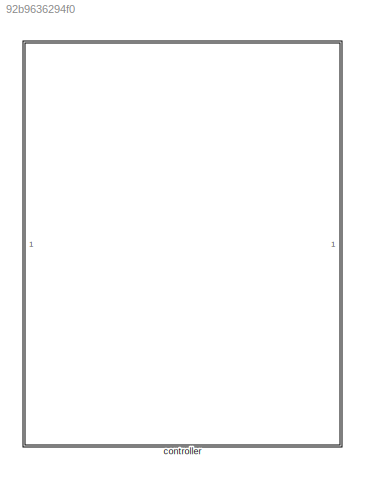
MODEL slx_92b9636294f0
KIND library
CONFIG AbsTol = auto
CONFIG EnableMultiTasking = off
CONFIG FixedStep = auto
CONFIG MaxStep = auto
CONFIG MinStep = auto
CONFIG RelTol = 1e-3
CONFIG SampleTimeConstraint = Unconstrained
CONFIG SolverName = VariableStepAuto
CONFIG StartTime = 0.0
CONFIG StopTime = 10.0
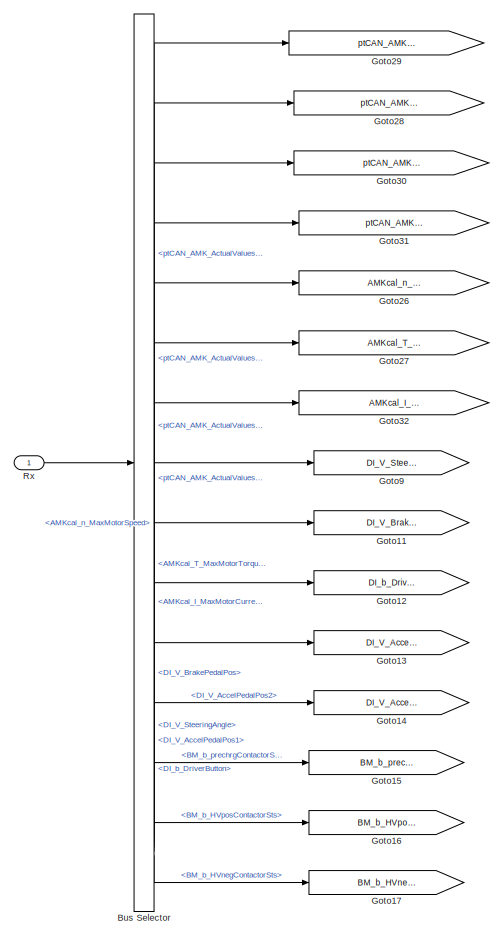
[diagram: controller - part 1/4, left side, full height]
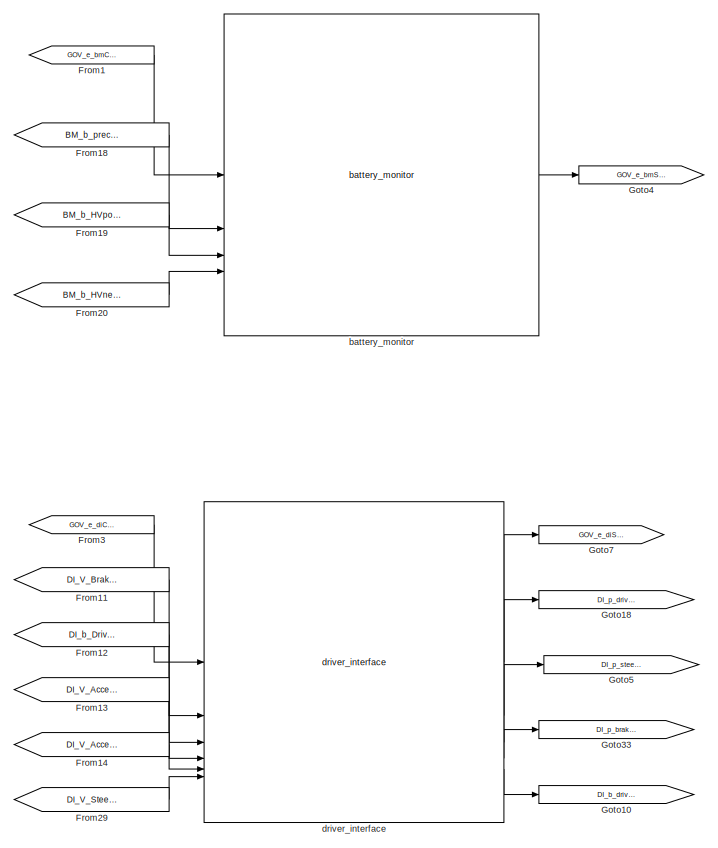
[diagram: controller - part 2/4, left side, full height]
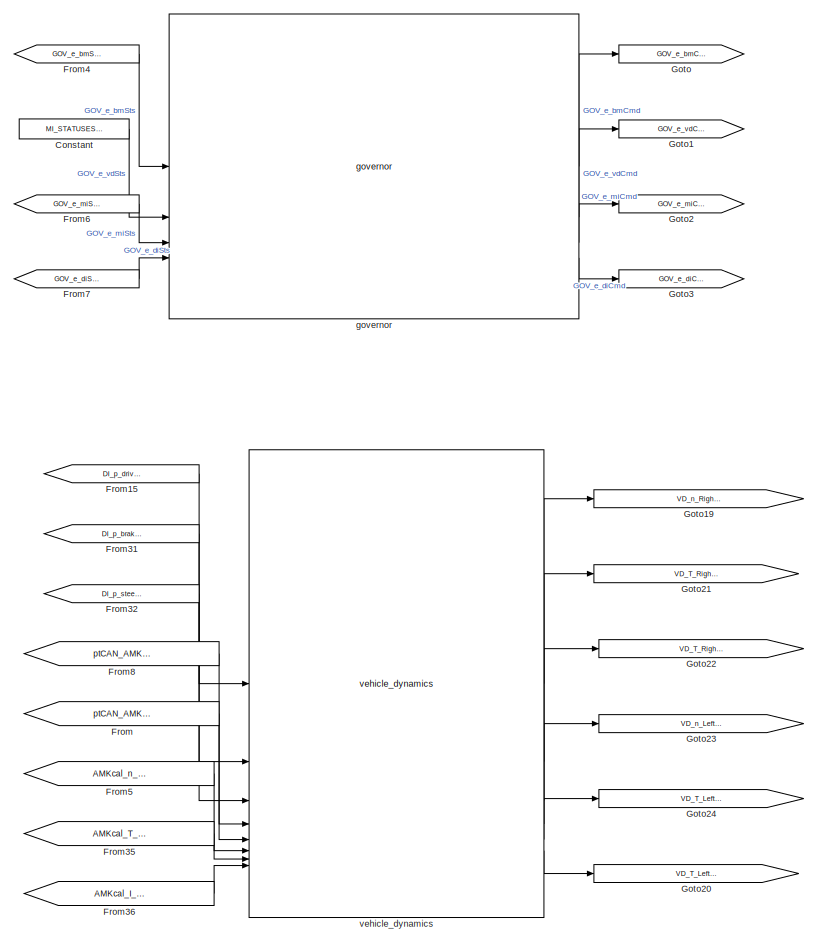
[diagram: controller - part 3/4, center side, full height]
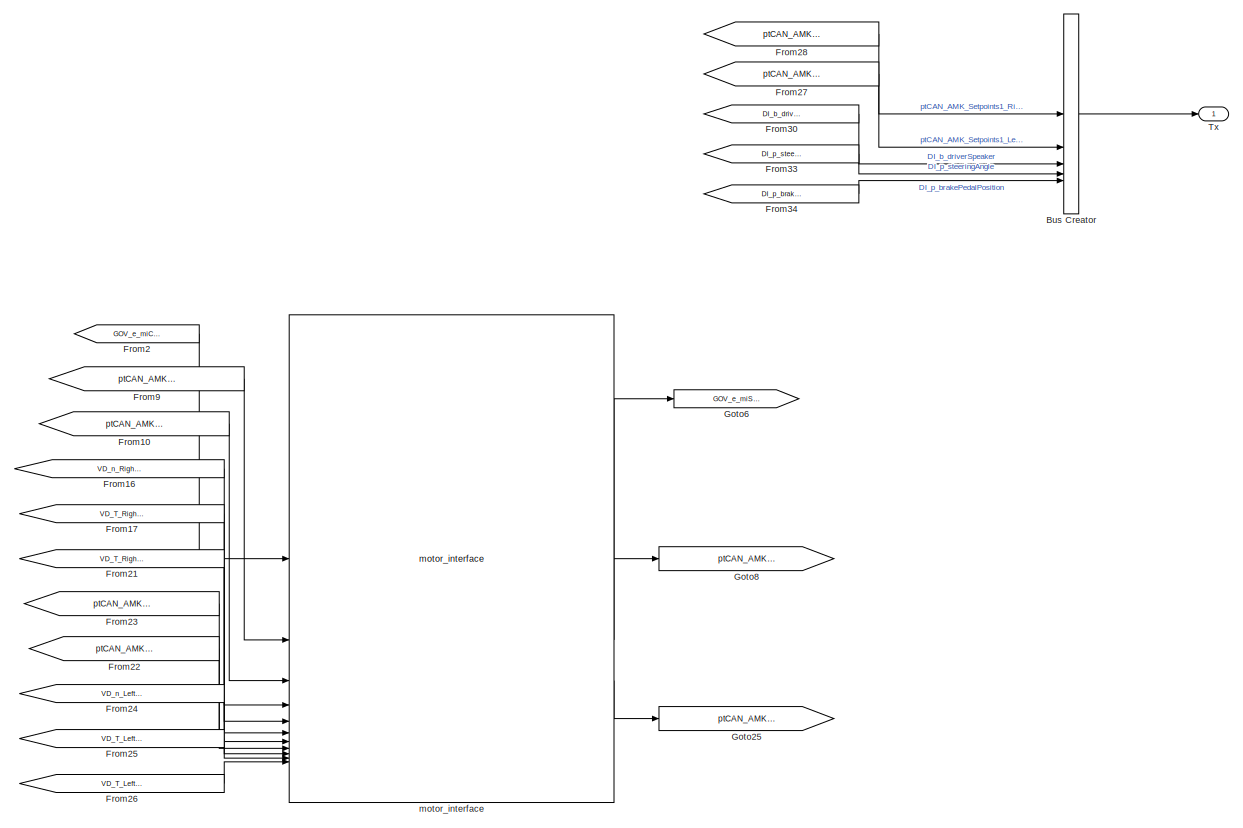
[diagram: controller - part 4/4, right side, full height]
BLOCK [SubSystem] controller
BLOCK [BusCreator] controller/Bus Creator
  DisplayOption = bar
  InheritFromInputs = on
  Inputs = 5
BLOCK [BusSelector] controller/Bus Selector
  OutputSignals = ptCAN_AMK_ActualValues1_Right,ptCAN_AMK_ActualValues2_Right,ptCAN_AMK_ActualValues1_Left,ptCAN_AMK_ActualValues2_Left,AMKcal_n_MaxMotorSpeed,AMKcal_T_MaxMotorTorque,AMKcal_I_MaxMotorCurrent,DI_V_SteeringAngle,DI_V_BrakePedalPos,DI_b_DriverButton,DI_V_AccelPedalPos1,DI_V_AccelPedalPos2,BM_b_prechrgContactorSts,BM_b_HVposContactorSts,BM_b_HVnegContactorSts
BLOCK [Constant] controller/Constant
  OutDataTypeStr = Enum: MI_STATUSES
  Value = MI_STATUSES.STS_INIT
BLOCK [From] controller/From
  GotoTag = ptCAN_AMK_ActualValues1_Right
BLOCK [From] controller/From1
  GotoTag = GOV_e_bmCmd
BLOCK [From] controller/From10
  GotoTag = ptCAN_AMK_ActualValues2_Right
BLOCK [From] controller/From11
  GotoTag = DI_V_BrakePedalPos
BLOCK [From] controller/From12
  GotoTag = DI_b_DriverButton
BLOCK [From] controller/From13
  GotoTag = DI_V_AccelPedalPos1
BLOCK [From] controller/From14
  GotoTag = DI_V_AccelPedalPos2
BLOCK [From] controller/From15
  GotoTag = DI_p_driverTorqueRequest
BLOCK [From] controller/From16
  GotoTag = VD_n_RightMotorSpeedRequest
BLOCK [From] controller/From17
  GotoTag = VD_T_RightMotorTorqueLimitPositive
BLOCK [From] controller/From18
  GotoTag = BM_b_prechrgContactorSts
BLOCK [From] controller/From19
  GotoTag = BM_b_HVposContactorSts
BLOCK [From] controller/From2
  GotoTag = GOV_e_miCmd
BLOCK [From] controller/From20
  GotoTag = BM_b_HVnegContactorSts
BLOCK [From] controller/From21
  GotoTag = VD_T_RightMotorTorqueLimitNegative
BLOCK [From] controller/From22
  GotoTag = ptCAN_AMK_ActualValues2_Left
BLOCK [From] controller/From23
  GotoTag = ptCAN_AMK_ActualValues1_Left
BLOCK [From] controller/From24
  GotoTag = VD_n_LeftMotorSpeedRequest
BLOCK [From] controller/From25
  GotoTag = VD_T_LeftMotorTorqueLimitPositive
BLOCK [From] controller/From26
  GotoTag = VD_T_LeftMotorTorqueLimitNegative
BLOCK [From] controller/From27
  GotoTag = ptCAN_AMK_Setpoints1_Left
BLOCK [From] controller/From28
  GotoTag = ptCAN_AMK_Setpoints1_Right
BLOCK [From] controller/From29
  GotoTag = DI_V_SteeringAngle
BLOCK [From] controller/From3
  GotoTag = GOV_e_diCmd
BLOCK [From] controller/From30
  GotoTag = DI_b_driverSpeaker
BLOCK [From] controller/From31
  GotoTag = DI_p_brakePedalPosition
BLOCK [From] controller/From32
  GotoTag = DI_p_steeringAngle
BLOCK [From] controller/From33
  GotoTag = DI_p_steeringAngle
BLOCK [From] controller/From34
  GotoTag = DI_p_brakePedalPosition
BLOCK [From] controller/From35
  GotoTag = AMKcal_T_MaxMotorTorque
BLOCK [From] controller/From36
  GotoTag = AMKcal_I_MaxMotorCurrent
BLOCK [From] controller/From4
  GotoTag = GOV_e_bmSts
BLOCK [From] controller/From5
  GotoTag = AMKcal_n_MaxMotorSpeed
BLOCK [From] controller/From6
  GotoTag = GOV_e_miSts
BLOCK [From] controller/From7
  GotoTag = GOV_e_diSts
BLOCK [From] controller/From8
  GotoTag = ptCAN_AMK_ActualValues1_Left
BLOCK [From] controller/From9
  GotoTag = ptCAN_AMK_ActualValues1_Right
BLOCK [Goto] controller/Goto
  GotoTag = GOV_e_bmCmd
BLOCK [Goto] controller/Goto1
  GotoTag = GOV_e_vdCmd
BLOCK [Goto] controller/Goto10
  GotoTag = DI_b_driverSpeaker
BLOCK [Goto] controller/Goto11
  GotoTag = DI_V_BrakePedalPos
BLOCK [Goto] controller/Goto12
  GotoTag = DI_b_DriverButton
BLOCK [Goto] controller/Goto13
  GotoTag = DI_V_AccelPedalPos1
BLOCK [Goto] controller/Goto14
  GotoTag = DI_V_AccelPedalPos2
BLOCK [Goto] controller/Goto15
  GotoTag = BM_b_prechrgContactorSts
BLOCK [Goto] controller/Goto16
  GotoTag = BM_b_HVposContactorSts
BLOCK [Goto] controller/Goto17
  GotoTag = BM_b_HVnegContactorSts
BLOCK [Goto] controller/Goto18
  GotoTag = DI_p_driverTorqueRequest
BLOCK [Goto] controller/Goto19
  GotoTag = VD_n_RightMotorSpeedRequest
BLOCK [Goto] controller/Goto2
  GotoTag = GOV_e_miCmd
BLOCK [Goto] controller/Goto20
  GotoTag = VD_T_LeftMotorTorqueLimitNegative
BLOCK [Goto] controller/Goto21
  GotoTag = VD_T_RightMotorTorqueLimitPositive
BLOCK [Goto] controller/Goto22
  GotoTag = VD_T_RightMotorTorqueLimitNegative
BLOCK [Goto] controller/Goto23
  GotoTag = VD_n_LeftMotorSpeedRequest
BLOCK [Goto] controller/Goto24
  GotoTag = VD_T_LeftMotorTorqueLimitPositive
BLOCK [Goto] controller/Goto25
  GotoTag = ptCAN_AMK_Setpoints1_Left
BLOCK [Goto] controller/Goto26
  GotoTag = AMKcal_n_MaxMotorSpeed
BLOCK [Goto] controller/Goto27
  GotoTag = AMKcal_T_MaxMotorTorque
BLOCK [Goto] controller/Goto28
  GotoTag = ptCAN_AMK_ActualValues2_Right
BLOCK [Goto] controller/Goto29
  GotoTag = ptCAN_AMK_ActualValues1_Right
BLOCK [Goto] controller/Goto3
  GotoTag = GOV_e_diCmd
BLOCK [Goto] controller/Goto30
  GotoTag = ptCAN_AMK_ActualValues1_Left
BLOCK [Goto] controller/Goto31
  GotoTag = ptCAN_AMK_ActualValues2_Left
BLOCK [Goto] controller/Goto32
  GotoTag = AMKcal_I_MaxMotorCurrent
BLOCK [Goto] controller/Goto33
  GotoTag = DI_p_brakePedalPosition
BLOCK [Goto] controller/Goto4
  GotoTag = GOV_e_bmSts
BLOCK [Goto] controller/Goto5
  GotoTag = DI_p_steeringAngle
BLOCK [Goto] controller/Goto6
  GotoTag = GOV_e_miSts
BLOCK [Goto] controller/Goto7
  GotoTag = GOV_e_diSts
BLOCK [Goto] controller/Goto8
  GotoTag = ptCAN_AMK_Setpoints1_Right
BLOCK [Goto] controller/Goto9
  GotoTag = DI_V_SteeringAngle
BLOCK [Inport] controller/Rx
BLOCK [Outport] controller/Tx
BLOCK [Reference] controller/battery_monitor  REF=battery_monitor_lib/battery_monitor  (lib defined in slx_91b9e2d5ec61)
  SourceBlock = battery_monitor_lib/battery_monitor
  SourceType = SubSystem
BLOCK [Reference] controller/driver_interface  REF=driver_interface_lib/driver_interface  (lib defined in slx_3cb616a1b385)
  SourceBlock = driver_interface_lib/driver_interface
  SourceType = SubSystem
BLOCK [Reference] controller/governor  REF=governor_lib/governor  (lib defined in slx_791b6fe89bfd)
  SourceBlock = governor_lib/governor
  SourceType = SubSystem
BLOCK [Reference] controller/motor_interface  REF=motor_interface_lib/motor_interface  (lib defined in slx_5f2d46c379c1, slx_6012f76cf487)
  SourceBlock = motor_interface_lib/motor_interface
  SourceType = SubSystem
BLOCK [Reference] controller/vehicle_dynamics  REF=vehicle_dynamics_lib/vehicle_dynamics  (lib defined in slx_e99204e99f18)
  SourceBlock = vehicle_dynamics_lib/vehicle_dynamics
  SourceType = SubSystem
LINE controller/Bus Creator:1 -> controller/Tx:1
LINE controller/Bus Selector:1 -> controller/Goto29:1
LINE controller/Bus Selector:10 -> controller/Goto12:1
LINE controller/Bus Selector:11 -> controller/Goto13:1
LINE controller/Bus Selector:12 -> controller/Goto14:1
LINE controller/Bus Selector:13 -> controller/Goto15:1
LINE controller/Bus Selector:14 -> controller/Goto16:1
LINE controller/Bus Selector:15 -> controller/Goto17:1
LINE controller/Bus Selector:2 -> controller/Goto28:1
LINE controller/Bus Selector:3 -> controller/Goto30:1
LINE controller/Bus Selector:4 -> controller/Goto31:1
LINE controller/Bus Selector:5 -> controller/Goto26:1
LINE controller/Bus Selector:6 -> controller/Goto27:1
LINE controller/Bus Selector:7 -> controller/Goto32:1
LINE controller/Bus Selector:8 -> controller/Goto9:1
LINE controller/Bus Selector:9 -> controller/Goto11:1
LINE controller/Constant:1 -> controller/governor:2
LINE controller/From10:1 -> controller/motor_interface:3
LINE controller/From11:1 -> controller/driver_interface:2
LINE controller/From12:1 -> controller/driver_interface:3
LINE controller/From13:1 -> controller/driver_interface:4
LINE controller/From14:1 -> controller/driver_interface:5
LINE controller/From15:1 -> controller/vehicle_dynamics:1
LINE controller/From16:1 -> controller/motor_interface:4
LINE controller/From17:1 -> controller/motor_interface:5
LINE controller/From18:1 -> controller/battery_monitor:2
LINE controller/From19:1 -> controller/battery_monitor:3
LINE controller/From1:1 -> controller/battery_monitor:1
LINE controller/From20:1 -> controller/battery_monitor:4
LINE controller/From21:1 -> controller/motor_interface:6
LINE controller/From22:1 -> controller/motor_interface:8
LINE controller/From23:1 -> controller/motor_interface:7
LINE controller/From24:1 -> controller/motor_interface:9
LINE controller/From25:1 -> controller/motor_interface:10
LINE controller/From26:1 -> controller/motor_interface:11
LINE controller/From27:1 -> controller/Bus Creator:2
LINE controller/From28:1 -> controller/Bus Creator:1
LINE controller/From29:1 -> controller/driver_interface:6
LINE controller/From2:1 -> controller/motor_interface:1
LINE controller/From30:1 -> controller/Bus Creator:3
LINE controller/From31:1 -> controller/vehicle_dynamics:2
LINE controller/From32:1 -> controller/vehicle_dynamics:3
LINE controller/From33:1 -> controller/Bus Creator:4
LINE controller/From34:1 -> controller/Bus Creator:5
LINE controller/From35:1 -> controller/vehicle_dynamics:7
LINE controller/From36:1 -> controller/vehicle_dynamics:8
LINE controller/From3:1 -> controller/driver_interface:1
LINE controller/From4:1 -> controller/governor:1
LINE controller/From5:1 -> controller/vehicle_dynamics:6
LINE controller/From6:1 -> controller/governor:3
LINE controller/From7:1 -> controller/governor:4
LINE controller/From8:1 -> controller/vehicle_dynamics:4
LINE controller/From9:1 -> controller/motor_interface:2
LINE controller/From:1 -> controller/vehicle_dynamics:5
LINE controller/Rx:1 -> controller/Bus Selector:1
LINE controller/battery_monitor:1 -> controller/Goto4:1
LINE controller/driver_interface:1 -> controller/Goto7:1
LINE controller/driver_interface:2 -> controller/Goto18:1
LINE controller/driver_interface:3 -> controller/Goto5:1
LINE controller/driver_interface:4 -> controller/Goto33:1
LINE controller/driver_interface:5 -> controller/Goto10:1
LINE controller/governor:1 -> controller/Goto:1
LINE controller/governor:2 -> controller/Goto1:1
LINE controller/governor:3 -> controller/Goto2:1
LINE controller/governor:4 -> controller/Goto3:1
LINE controller/motor_interface:1 -> controller/Goto6:1
LINE controller/motor_interface:2 -> controller/Goto8:1
LINE controller/motor_interface:3 -> controller/Goto25:1
LINE controller/vehicle_dynamics:1 -> controller/Goto19:1
LINE controller/vehicle_dynamics:2 -> controller/Goto21:1
LINE controller/vehicle_dynamics:3 -> controller/Goto22:1
LINE controller/vehicle_dynamics:4 -> controller/Goto23:1
LINE controller/vehicle_dynamics:5 -> controller/Goto24:1
LINE controller/vehicle_dynamics:6 -> controller/Goto20:1
